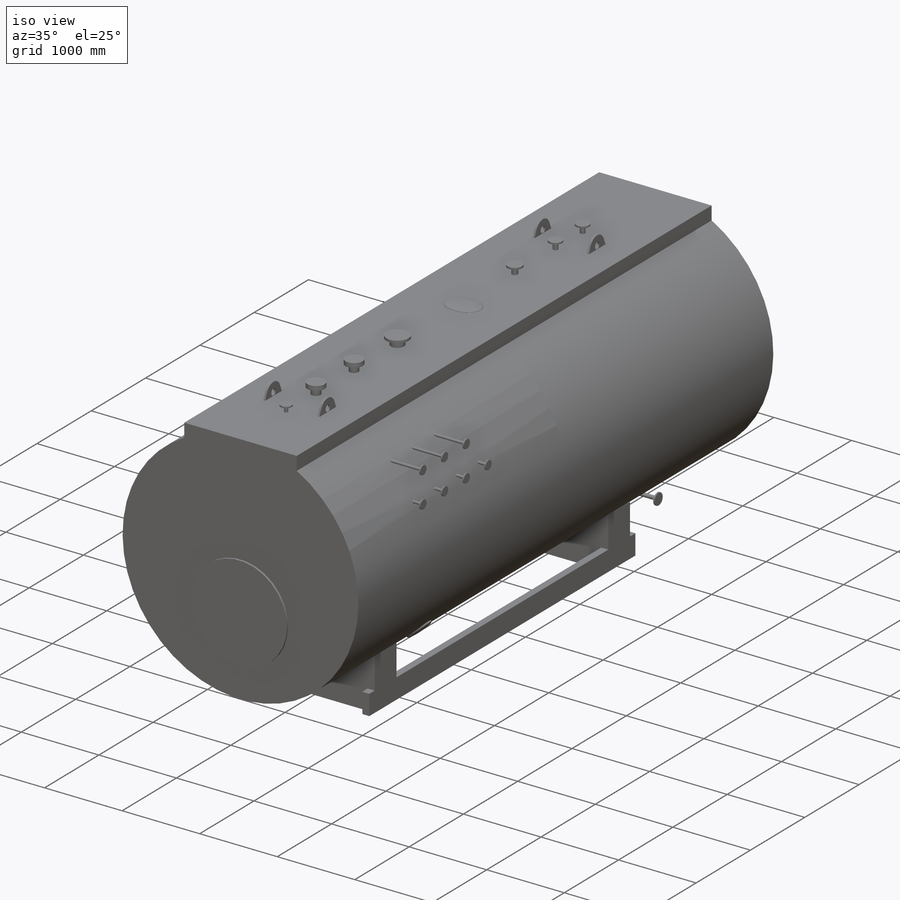
[diagram: iso view]
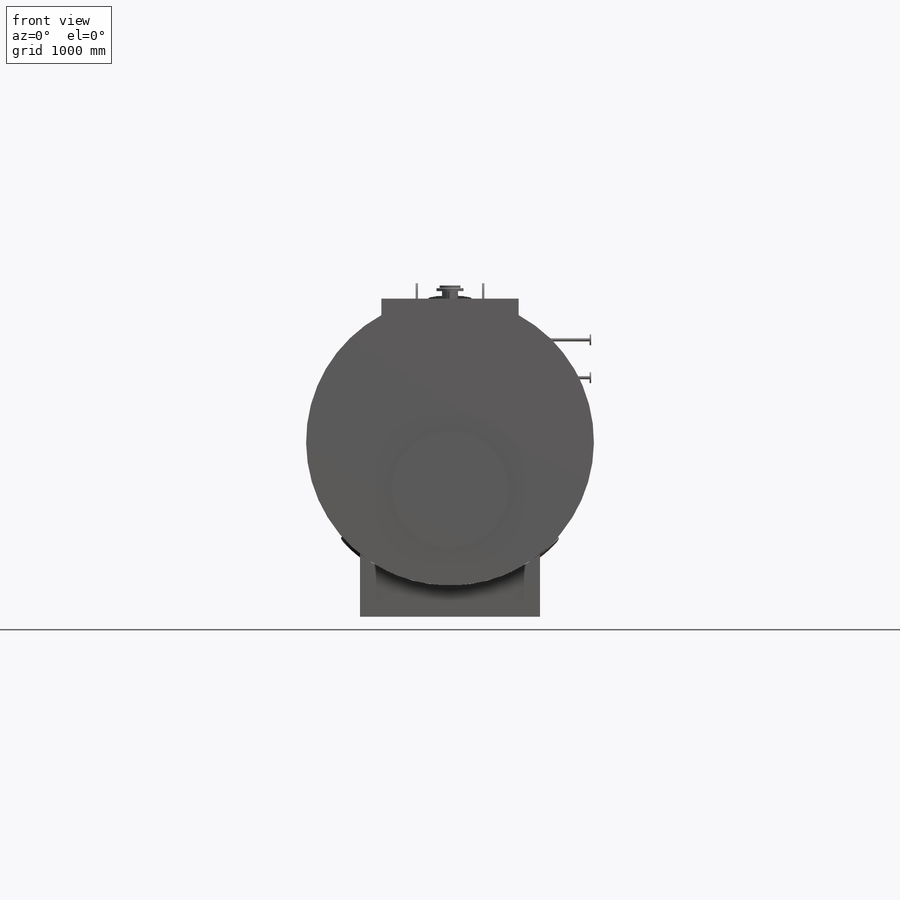
[diagram: front view]
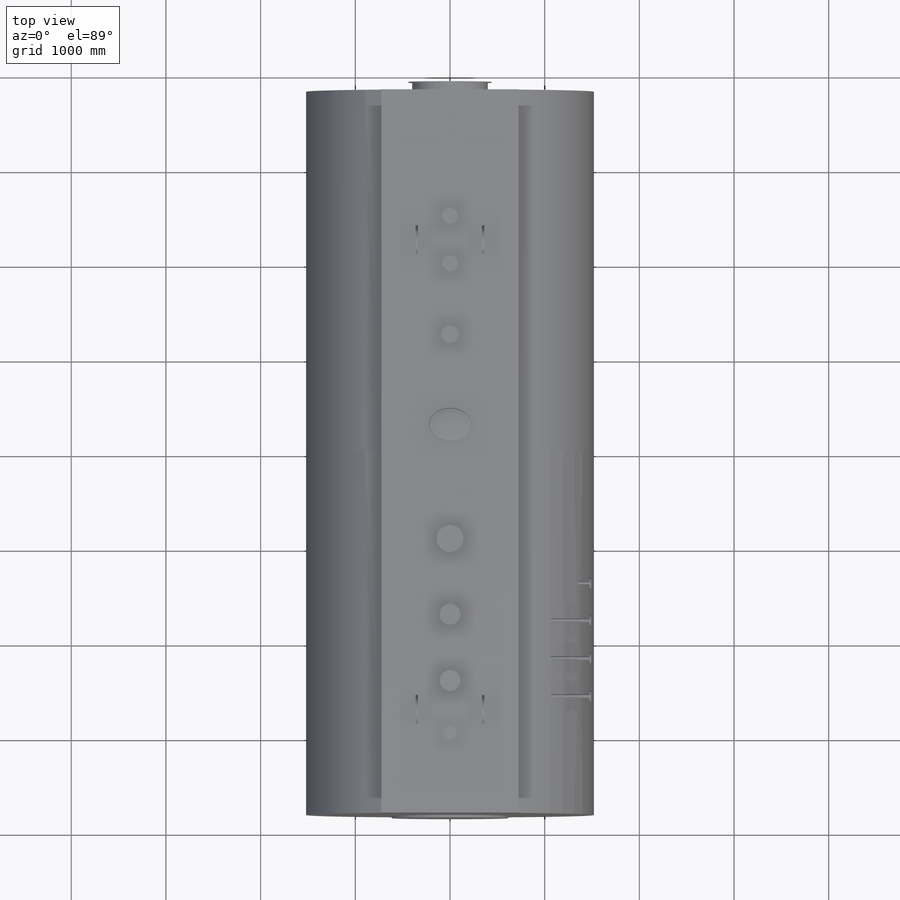
[diagram: top view]
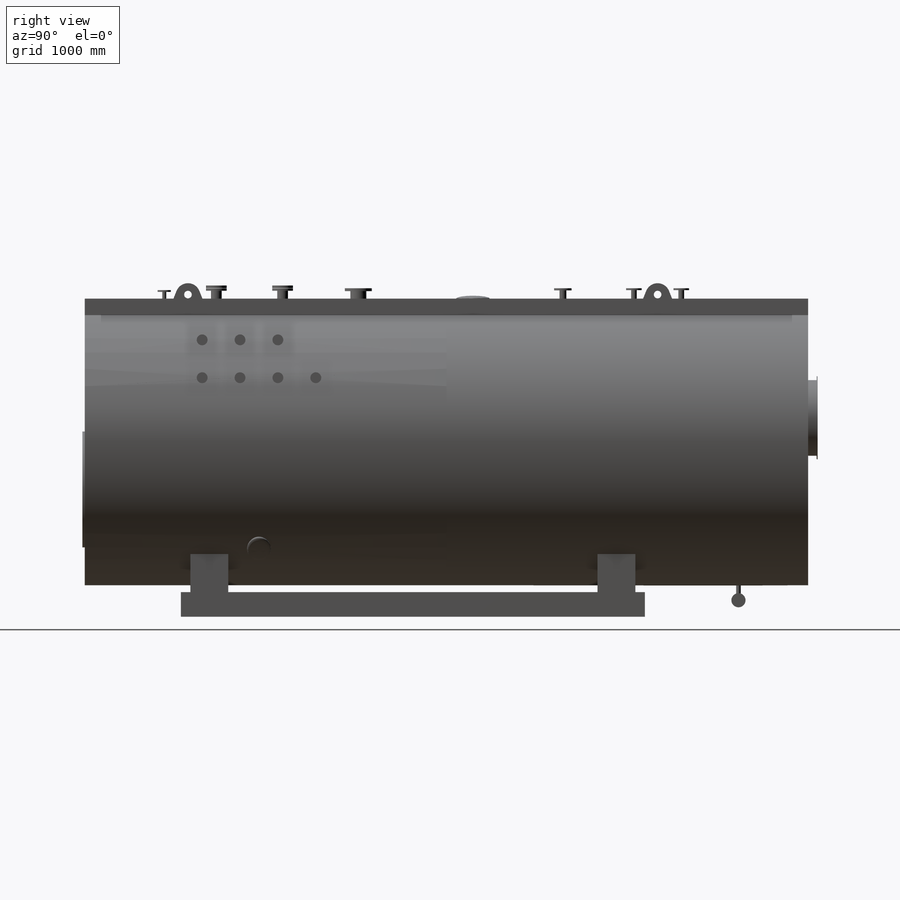
[diagram: right view]
SOLIDWORKS PART (.sldprt)
format: sldprt  version: not decoded by parser v0  size: 784,384 bytes
history: native  units: mm
features: sketch x27, extrude x16, plane x11, cut_extrude x4, material x1, revolve x1, dome x1, sweep x1, move_body x1, pattern_linear x1, mirror x1 + 5 further entries (+22 scaffold rows collapsed; 10 parser-record rows omitted)
feature tree (102):
  scaffold x22  (default folders/planes/origin — collapsed)
  material  "Materiale <non specificato>"
  plane  "Piano frontale"
  plane  "Piano superiore"
  plane  "Piano destro"
  "Asse Y"
  "Asse Z"
  sketch  "Schizzo1"  dims[c1.D1=~82.206908mm c1.D3=3040.0mm c2.D1=1200.0mm c2.D2=1200.0mm c3.D1=1450.0mm c3.D2=1510.0mm]
  extrude  "corpo"  Depth=7640mm
  parser-record x10  (decoder bookkeeping rows leaked as tree rows — omitted from the tree; the rows remain in map.json)
  plane  "Piano5"  Offset=1850mm
  sketch  "Schizzo4"  dims[c1.D1=1200.0mm c1.D3=1200.0mm c1.D2=160.0mm c2.D1=1900.0mm c2.D2=4900.0mm c2.D3=1015.0mm c3.D2=0.0mm c3.D1=260.0mm c3.D5=90.0mm c3.D6=10.0mm c3.D7=5.0mm]
  sketch  "Schizzo18"  dims[D1=0.0mm]
  cut_extrude  "Taglio-Estrusione2"  [1 undecoded]
  sketch  "Schizzo17"  dims[D1=300.0mm D2=400.0mm]
  extrude  "Estrusione-Estrusione15"  [1 undecoded]
  sketch  "Schizzo2"  dims[c1.D1=~548.338917mm c1.D2=1230.0mm c2.D1=865.0mm c2.D3=~1052.722661mm c3.D1=865.0mm c3.D3=~1052.722661mm c4.D1=1345.0mm]
  extrude  "piastra bruciatore"  Depth=25mm
  sketch  "Schizzo3"  dims[c1.D1=1500.0mm c1.D2=798.0mm c1.D3=10.0mm c1.D4=880.0mm c1.D5=100.0mm c1.D6=~1753.946116mm c2.D1=1500.0mm c2.D6=~2093.286384mm c3.D1=1500.0mm c3.D6=~2053.82648mm c4.D1=2100.0mm]
  revolve  "attacco camino"  Angle=360deg
  sketch  "Schizzo13"  dims[c1.D1=710.0mm c1.D2=980.0mm c1.D3=~1149.086594mm c2.D2=1180.0mm]
  cut_extrude  "foro tampone"  Depth=200mm
  sketch  "Schizzo5"  dims[c1.D5=33.7mm c1.D7=~71.748263mm c1.D8=60.3mm c2.D5=60.3mm c2.D9=33.7mm c3.D5=60.3mm c3.D1=675.0mm c3.D2=400.0mm c3.D3=400.0mm c3.D4=1240.0mm c3.D6=400.0mm c3.D7=30.0mm]
  extrude  "Estrusione-Estrusione4"  Depth=1490mm
  sketch  "Schizzo6"  dims[c1.D1=105.0mm c1.D2=115.0mm c2.D1=115.0mm]
  extrude  "Estrusione-Estrusione5"  Depth=16mm
  plane  "Piano1"  Offset=1620mm
  sketch  "Schizzo8"  dims[c1.D1=73.0mm c1.D2=168.3mm c1.D3=114.3mm c1.D5=76.0mm c1.D6=76.0mm c1.D7=~162.059494mm c1.D8=~162.059494mm c1.D9=60.3mm c2.D5=114.3mm c2.D10=114.3mm c2.D7=88.9mm c2.D11=33.7mm c2.D12=60.3mm c2.D4=114.3mm c2.D14=42.4mm c3.D4=836.0mm c3.D5=550.0mm c3.D6=2160.0mm c3.D7=300.0mm c3.D8=400.0mm c4.D5=700.0mm c4.D10=800.0mm c4.D7=750.0mm c4.D11=500.0mm c4.D4=550.0mm c4.D13=840.0mm]
  extrude  "Estrusione-Estrusione6"  [1 undecoded]
  sketch  "Schizzo9"  dims[D1=220.0mm D2=285.0mm D3=185.0mm D4=165.0mm D5=140.0mm]
  extrude  "Estrusione-Estrusione8"  Depth=30mm
  extrude  "Estrusione-Estrusione9"  [1 undecoded]
  sketch  "Schizzo9<3>"  dims[D1=22.0mm]
  extrude  "Estrusione-Estrusione10"  [1 undecoded]
  sketch  "Schizzo9<4>"  dims[D1=26.0mm]
  extrude  "Estrusione-Estrusione16"  [1 undecoded]
  sketch  "Schizzo9<6>"  dims[D1=20.0mm]
  sketch  "Schizzo20"  dims[D1=0.0mm]
  cut_extrude  "Taglio-Estrusione3"  Depth=20mm
  extrude  "Estrusione-Estrusione18"  [1 undecoded]
  sketch  "Schizzo9<7>"  dims[D1=18.0mm D19=20.0mm]
  sketch  "Schizzo21"
  extrude  "Estrusione-Estrusione19"  Depth=26mm
  sketch  "Schizzo10"  dims[c1.D3=150.0mm c1.D1=352.0mm c1.D2=452.0mm c2.D3=1210.0mm]
  extrude  "passo d'uomo"  Depth=1mm
  dome  "Cupola1"
  sketch  "Schizzo3D1"  dims[c1.D1=1200.0mm c2.D1=42.0deg c2.D2=5100.0mm c2.D3=1840.0mm]
  plane  "Piano2"
  plane  "Piano6"
  plane  "Piano8"
  plane  "Piano7"
  sketch  "Schizzo11"  dims[D1=252.0mm D2=352.0mm]
  extrude  "passo di testa 1"  [1 undecoded]
  sketch  "Schizzo19"  dims[D1=252.0mm D2=352.0mm]
  extrude  "Estrusione-Estrusione17"  [1 undecoded]
  sketch  "Cupola2"  dims[D1=30.0mm]
  sketch  "Cupola3"  dims[D1=30.0mm]
  plane  "Piano3"  Offset=736mm
  sketch  "Schizzo14"  dims[c1.D3=50.0mm c1.D1=557.0mm c1.D2=98.0mm c1.D4=~657.34618mm c2.D2=175.0mm]
  plane  "Piano4"
  sketch  "Schizzo15"  dims[D1=48.3mm]
  sweep  "Sweep1"
  sketch  "Schizzo16"  dims[D1=150.0mm]
  extrude  "Estrusione-Estrusione14"  Depth=18mm
  "golfare1"
  sketch  "Schizzo22"  dims[D1=0.0mm]
  cut_extrude  "Taglio-Estrusione4"  Depth=5mm
  move_body  "Corpo-Sposta/copia1"
  "Distanza2"
  "Distanza3"
  pattern_linear  "Ripetizione a L1"  Count1=2 Count2=1 Spacing1=4960mm Spacing2=10mm
  mirror  "Specchia1"
decode coverage: 39 of 53 modeling features carry decoded parameters; 5 rows unclassified (native names shown)
note: ~ marks probable driven/reference dimensions
note: 9 parameter values undecoded
summary: no parameter record found for 9 features
note: suppression state not decoded; provenance and decode notes live in map.json
